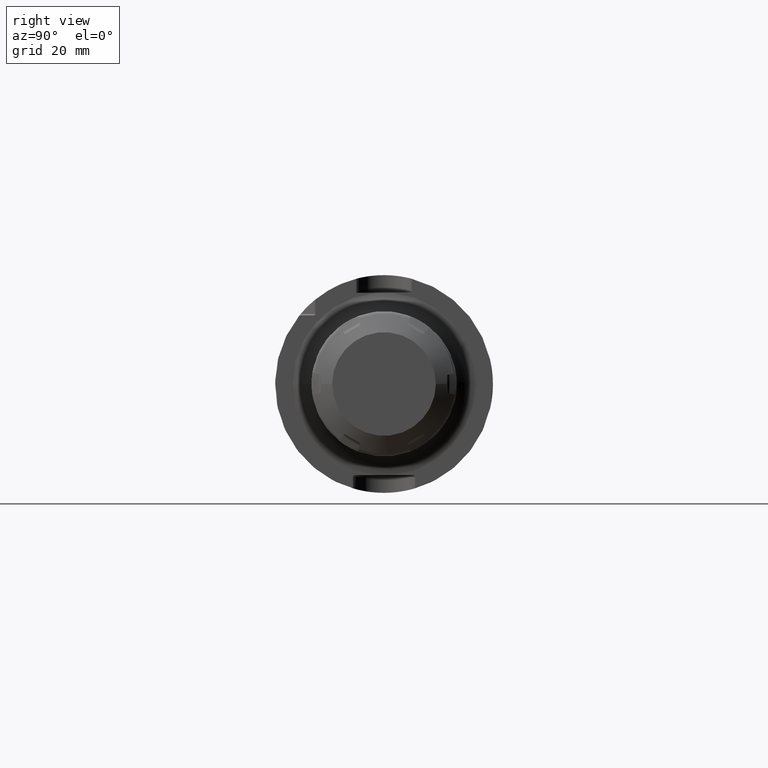
[diagram: clean part render]
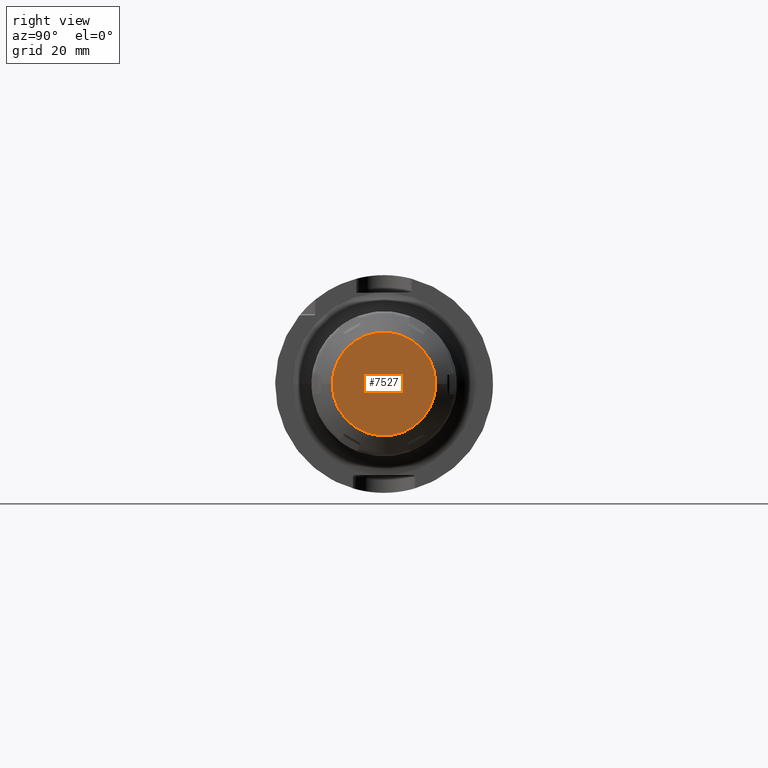
[diagram: same view with one face highlighted and labeled with its STEP entity id]
A machine part, right view. The second image highlights one B-rep face of the part: STEP entity #7527.
In plain terms, the highlighted planar face has unit normal (1, 0, 0).
Its self-contained STEP definition (entity closure, byte-faithful):
#6682=CARTESIAN_POINT('',(2.E1,-2.266909448450E-14,0.E0));
#6683=DIRECTION('',(-1.E0,0.E0,0.E0));
#6684=DIRECTION('',(0.E0,1.E0,0.E0));
#6685=AXIS2_PLACEMENT_3D('',#6682,#6683,#6684);
#7004=CARTESIAN_POINT('',(2.E1,-2.266909448450E-14,0.E0));
#7005=DIRECTION('',(1.E0,0.E0,0.E0));
#7006=DIRECTION('',(0.E0,1.E0,0.E0));
#7007=AXIS2_PLACEMENT_3D('',#7004,#7005,#7006);
#7414=CARTESIAN_POINT('',(2.E1,1.5E1,0.E0));
#7415=CARTESIAN_POINT('',(2.E1,-1.5E1,0.E0));
#7416=VERTEX_POINT('',#7414);
#7417=VERTEX_POINT('',#7415);
#7516=CARTESIAN_POINT('',(2.E1,-2.266909448450E-14,0.E0));
#7517=DIRECTION('',(1.E0,0.E0,0.E0));
#7518=DIRECTION('',(0.E0,-1.E0,0.E0));
#7519=AXIS2_PLACEMENT_3D('',#7516,#7517,#7518);
#7520=PLANE('',#7519);
#7522=ORIENTED_EDGE('',*,*,#7521,.T.);
#7524=ORIENTED_EDGE('',*,*,#7523,.F.);
#7525=EDGE_LOOP('',(#7522,#7524));
#7526=FACE_OUTER_BOUND('',#7525,.F.);
#7527=ADVANCED_FACE('',(#7526),#7520,.T.);
#6686=CIRCLE('',#6685,1.5E1);
#7008=CIRCLE('',#7007,1.5E1);
#7521=EDGE_CURVE('',#7416,#7417,#6686,.T.);
#7523=EDGE_CURVE('',#7416,#7417,#7008,.T.);